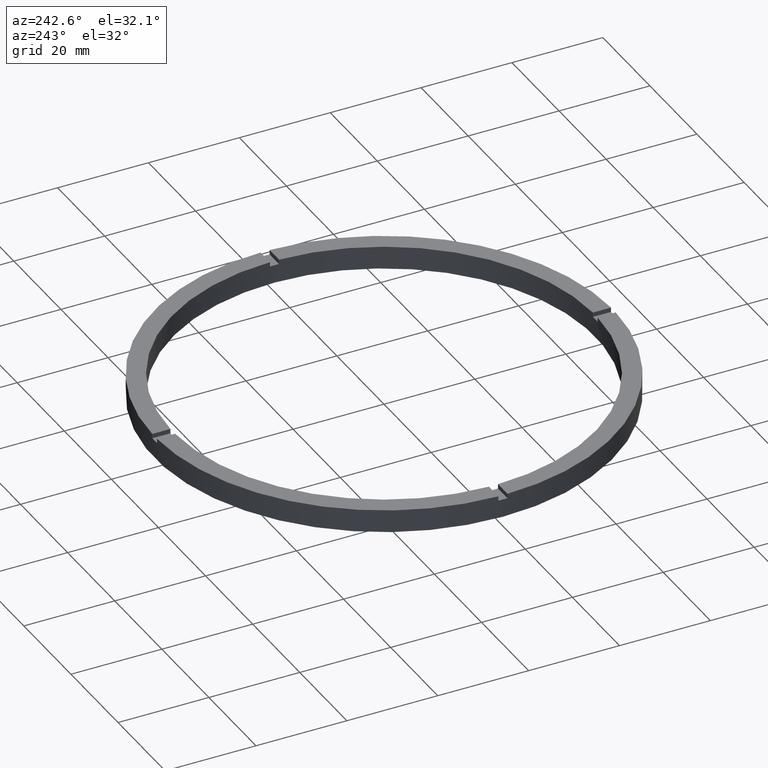
[diagram: clean part render]
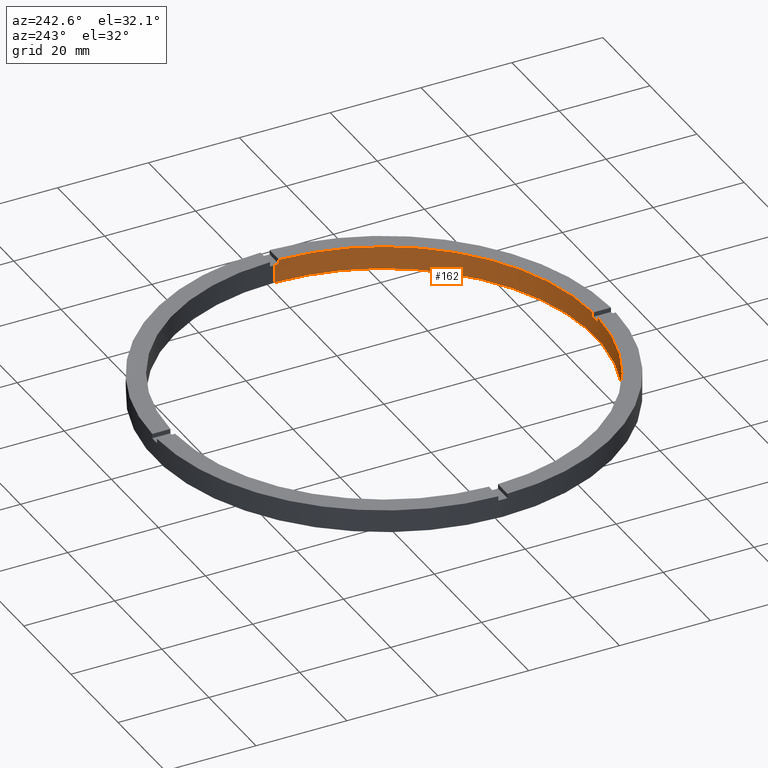
[diagram: same view with one face highlighted and labeled with its STEP entity id]
A machine part, auxiliary view. The second image highlights one B-rep face of the part: STEP entity #162.
In plain terms, the highlighted cylindrical surface (partial cylindrical patch) has radius 46.5 mm, axis along (-0, -0, -1).
Its self-contained STEP definition (entity closure, byte-faithful):
#9 = AXIS2_PLACEMENT_3D ( 'NONE', #67, #606, #676 ) ;
#12 = DIRECTION ( 'NONE',  ( -1.000000000000000000, 0.000000000000000000, 0.000000000000000000 ) ) ;
#30 = CARTESIAN_POINT ( 'NONE',  ( 0.9999999999998430145, -46.48924606831132422, 5.000000000000000000 ) ) ;
#37 = DIRECTION ( 'NONE',  ( 1.000000000000000000, 0.000000000000000000, 0.000000000000000000 ) ) ;
#39 = CARTESIAN_POINT ( 'NONE',  ( 46.50000000000000000, 5.694607616035192278E-15, 5.000000000000000000 ) ) ;
#62 = DIRECTION ( 'NONE',  ( -0.000000000000000000, -0.000000000000000000, -1.000000000000000000 ) ) ;
#67 = CARTESIAN_POINT ( 'NONE',  ( 0.000000000000000000, 0.000000000000000000, 5.000000000000000000 ) ) ;
#68 = DIRECTION ( 'NONE',  ( 0.000000000000000000, 0.000000000000000000, 1.000000000000000000 ) ) ;
#70 = EDGE_CURVE ( 'NONE', #346, #441, #405, .T. ) ;
#77 = VERTEX_POINT ( 'NONE', #739 ) ;
#88 = VERTEX_POINT ( 'NONE', #529 ) ;
#92 = VERTEX_POINT ( 'NONE', #532 ) ;
#99 = ORIENTED_EDGE ( 'NONE', *, *, #263, .T. ) ;
#112 = CARTESIAN_POINT ( 'NONE',  ( 0.000000000000000000, 0.000000000000000000, 5.000000000000000000 ) ) ;
#120 = VERTEX_POINT ( 'NONE', #447 ) ;
#124 = VERTEX_POINT ( 'NONE', #664 ) ;
#128 = DIRECTION ( 'NONE',  ( 1.000000000000000000, 0.000000000000000000, 0.000000000000000000 ) ) ;
#155 = EDGE_CURVE ( 'NONE', #88, #124, #737, .T. ) ;
#162 = ADVANCED_FACE ( 'NONE', ( #741 ), #473, .F. ) ;
#163 = AXIS2_PLACEMENT_3D ( 'NONE', #704, #774, #37 ) ;
#165 = EDGE_CURVE ( 'NONE', #465, #343, #481, .T. ) ;
#186 = ORIENTED_EDGE ( 'NONE', *, *, #70, .F. ) ;
#188 = ORIENTED_EDGE ( 'NONE', *, *, #508, .T. ) ;
#195 = DIRECTION ( 'NONE',  ( 0.000000000000000000, 0.000000000000000000, 1.000000000000000000 ) ) ;
#200 = CARTESIAN_POINT ( 'NONE',  ( -46.50000000000000000, 0.000000000000000000, 5.000000000000000000 ) ) ;
#202 = LINE ( 'NONE', #722, #685 ) ;
#218 = DIRECTION ( 'NONE',  ( -0.000000000000000000, -0.000000000000000000, -1.000000000000000000 ) ) ;
#229 = CARTESIAN_POINT ( 'NONE',  ( 46.48924606831132422, -1.000000000000155209, 4.000000000000000000 ) ) ;
#232 = LINE ( 'NONE', #267, #487 ) ;
#236 = CIRCLE ( 'NONE', #163, 46.50000000000000000 ) ;
#244 = AXIS2_PLACEMENT_3D ( 'NONE', #112, #258, #714 ) ;
#256 = LINE ( 'NONE', #39, #763 ) ;
#258 = DIRECTION ( 'NONE',  ( 0.000000000000000000, 0.000000000000000000, 1.000000000000000000 ) ) ;
#263 = EDGE_CURVE ( 'NONE', #581, #77, #721, .T. ) ;
#267 = CARTESIAN_POINT ( 'NONE',  ( 0.9999999999998430145, -46.48924606831132422, 5.000000000000000000 ) ) ;
#289 = CARTESIAN_POINT ( 'NONE',  ( -46.50000000000000000, 0.000000000000000000, 0.000000000000000000 ) ) ;
#290 = AXIS2_PLACEMENT_3D ( 'NONE', #315, #218, #12 ) ;
#307 = EDGE_CURVE ( 'NONE', #581, #634, #232, .T. ) ;
#309 = CARTESIAN_POINT ( 'NONE',  ( 0.000000000000000000, 0.000000000000000000, 4.000000000000000000 ) ) ;
#310 = DIRECTION ( 'NONE',  ( 0.000000000000000000, 0.000000000000000000, 1.000000000000000000 ) ) ;
#314 = CARTESIAN_POINT ( 'NONE',  ( -1.000000000000156986, -46.48924606831132422, 5.000000000000000000 ) ) ;
#315 = CARTESIAN_POINT ( 'NONE',  ( 0.000000000000000000, 0.000000000000000000, 5.000000000000000000 ) ) ;
#341 = ORIENTED_EDGE ( 'NONE', *, *, #307, .F. ) ;
#343 = VERTEX_POINT ( 'NONE', #783 ) ;
#346 = VERTEX_POINT ( 'NONE', #654 ) ;
#358 = DIRECTION ( 'NONE',  ( -0.000000000000000000, -0.000000000000000000, -1.000000000000000000 ) ) ;
#380 = ORIENTED_EDGE ( 'NONE', *, *, #753, .F. ) ;
#405 = LINE ( 'NONE', #200, #650 ) ;
#415 = CARTESIAN_POINT ( 'NONE',  ( 0.9999999999998430145, -46.48924606831132422, 4.000000000000000000 ) ) ;
#419 = EDGE_CURVE ( 'NONE', #441, #120, #236, .T. ) ;
#441 = VERTEX_POINT ( 'NONE', #289 ) ;
#444 = EDGE_LOOP ( 'NONE', ( #613, #188, #703, #186, #467, #624, #633, #380, #686, #341, #99, #618 ) ) ;
#447 = CARTESIAN_POINT ( 'NONE',  ( 46.50000000000000000, 5.694607616035192278E-15, 0.000000000000000000 ) ) ;
#459 = VECTOR ( 'NONE', #195, 1000.000000000000000 ) ;
#465 = VERTEX_POINT ( 'NONE', #229 ) ;
#467 = ORIENTED_EDGE ( 'NONE', *, *, #573, .T. ) ;
#469 = CARTESIAN_POINT ( 'NONE',  ( -1.000000000000156986, -46.48924606831132422, 4.000000000000000000 ) ) ;
#473 = CYLINDRICAL_SURFACE ( 'NONE', #290, 46.50000000000000000 ) ;
#479 = DIRECTION ( 'NONE',  ( -0.000000000000000000, -0.000000000000000000, -1.000000000000000000 ) ) ;
#480 = VECTOR ( 'NONE', #62, 1000.000000000000000 ) ;
#481 = CIRCLE ( 'NONE', #645, 46.50000000000000000 ) ;
#487 = VECTOR ( 'NONE', #479, 1000.000000000000000 ) ;
#504 = CIRCLE ( 'NONE', #525, 46.50000000000000000 ) ;
#507 = CIRCLE ( 'NONE', #244, 46.50000000000000000 ) ;
#508 = EDGE_CURVE ( 'NONE', #343, #120, #256, .T. ) ;
#521 = DIRECTION ( 'NONE',  ( -0.000000000000000000, -0.000000000000000000, -1.000000000000000000 ) ) ;
#525 = AXIS2_PLACEMENT_3D ( 'NONE', #770, #68, #689 ) ;
#529 = CARTESIAN_POINT ( 'NONE',  ( -46.48924606831132422, -1.000000000000031086, 5.000000000000000000 ) ) ;
#532 = CARTESIAN_POINT ( 'NONE',  ( -1.000000000000156986, -46.48924606831132422, 5.000000000000000000 ) ) ;
#534 = DIRECTION ( 'NONE',  ( 0.000000000000000000, 0.000000000000000000, 1.000000000000000000 ) ) ;
#538 = DIRECTION ( 'NONE',  ( -0.000000000000000000, 0.000000000000000000, 1.000000000000000000 ) ) ;
#573 = EDGE_CURVE ( 'NONE', #346, #124, #504, .T. ) ;
#581 = VERTEX_POINT ( 'NONE', #30 ) ;
#606 = DIRECTION ( 'NONE',  ( 0.000000000000000000, 0.000000000000000000, 1.000000000000000000 ) ) ;
#613 = ORIENTED_EDGE ( 'NONE', *, *, #165, .T. ) ;
#615 = VERTEX_POINT ( 'NONE', #469 ) ;
#618 = ORIENTED_EDGE ( 'NONE', *, *, #682, .F. ) ;
#624 = ORIENTED_EDGE ( 'NONE', *, *, #155, .F. ) ;
#633 = ORIENTED_EDGE ( 'NONE', *, *, #661, .T. ) ;
#634 = VERTEX_POINT ( 'NONE', #415 ) ;
#645 = AXIS2_PLACEMENT_3D ( 'NONE', #749, #310, #677 ) ;
#650 = VECTOR ( 'NONE', #358, 1000.000000000000000 ) ;
#654 = CARTESIAN_POINT ( 'NONE',  ( -46.50000000000000000, 0.000000000000000000, 4.000000000000000000 ) ) ;
#661 = EDGE_CURVE ( 'NONE', #88, #92, #507, .T. ) ;
#664 = CARTESIAN_POINT ( 'NONE',  ( -46.48924606831132422, -1.000000000000031086, 4.000000000000000000 ) ) ;
#676 = DIRECTION ( 'NONE',  ( 1.000000000000000000, 0.000000000000000000, 0.000000000000000000 ) ) ;
#677 = DIRECTION ( 'NONE',  ( 1.000000000000000000, 0.000000000000000000, 0.000000000000000000 ) ) ;
#680 = LINE ( 'NONE', #314, #459 ) ;
#682 = EDGE_CURVE ( 'NONE', #465, #77, #202, .T. ) ;
#684 = AXIS2_PLACEMENT_3D ( 'NONE', #309, #538, #128 ) ;
#685 = VECTOR ( 'NONE', #534, 1000.000000000000000 ) ;
#686 = ORIENTED_EDGE ( 'NONE', *, *, #760, .T. ) ;
#687 = CIRCLE ( 'NONE', #684, 46.50000000000000000 ) ;
#689 = DIRECTION ( 'NONE',  ( 1.000000000000000000, 0.000000000000000000, 0.000000000000000000 ) ) ;
#703 = ORIENTED_EDGE ( 'NONE', *, *, #419, .F. ) ;
#704 = CARTESIAN_POINT ( 'NONE',  ( 0.000000000000000000, 0.000000000000000000, 0.000000000000000000 ) ) ;
#714 = DIRECTION ( 'NONE',  ( 1.000000000000000000, 0.000000000000000000, 0.000000000000000000 ) ) ;
#721 = CIRCLE ( 'NONE', #9, 46.50000000000000000 ) ;
#722 = CARTESIAN_POINT ( 'NONE',  ( 46.48924606831132422, -1.000000000000155209, 5.000000000000000000 ) ) ;
#737 = LINE ( 'NONE', #757, #480 ) ;
#739 = CARTESIAN_POINT ( 'NONE',  ( 46.48924606831132422, -1.000000000000155209, 5.000000000000000000 ) ) ;
#741 = FACE_OUTER_BOUND ( 'NONE', #444, .T. ) ;
#749 = CARTESIAN_POINT ( 'NONE',  ( 0.000000000000000000, 0.000000000000000000, 4.000000000000000000 ) ) ;
#753 = EDGE_CURVE ( 'NONE', #615, #92, #680, .T. ) ;
#757 = CARTESIAN_POINT ( 'NONE',  ( -46.48924606831132422, -1.000000000000031086, 5.000000000000000000 ) ) ;
#760 = EDGE_CURVE ( 'NONE', #615, #634, #687, .T. ) ;
#763 = VECTOR ( 'NONE', #521, 1000.000000000000000 ) ;
#770 = CARTESIAN_POINT ( 'NONE',  ( 0.000000000000000000, 0.000000000000000000, 4.000000000000000000 ) ) ;
#774 = DIRECTION ( 'NONE',  ( 0.000000000000000000, 0.000000000000000000, 1.000000000000000000 ) ) ;
#783 = CARTESIAN_POINT ( 'NONE',  ( 46.50000000000000000, 5.694607616035192278E-15, 4.000000000000000000 ) ) ;